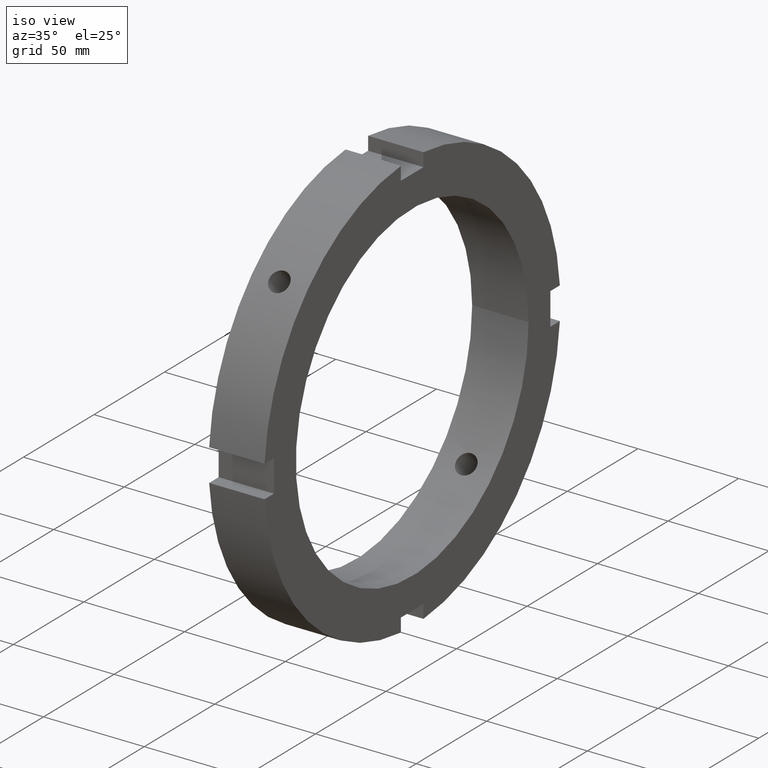
[diagram: clean part render]
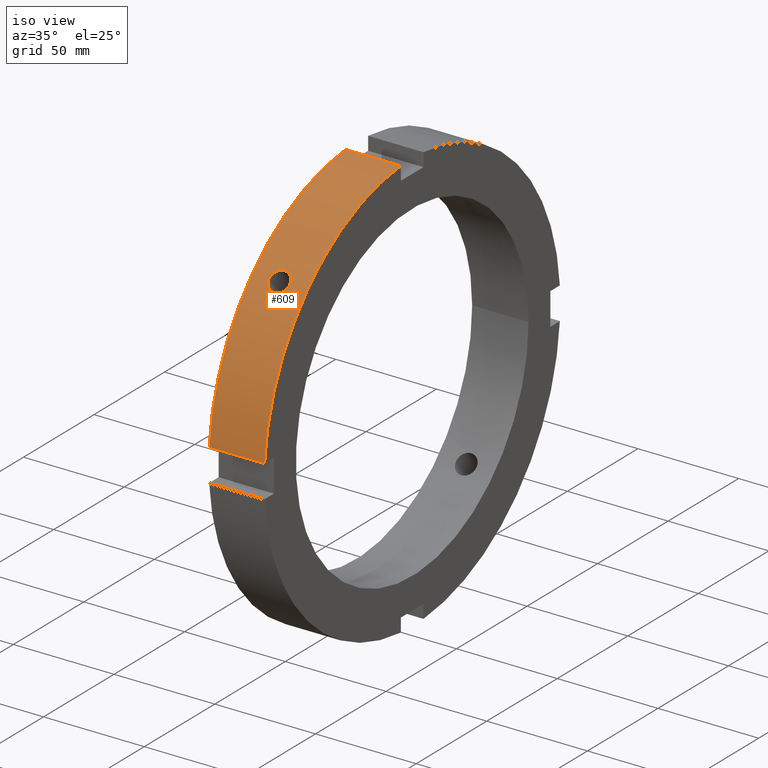
[diagram: same view with one face highlighted and labeled with its STEP entity id]
A machine part, iso view. The second image highlights one B-rep face of the part: STEP entity #609.
In plain terms, the highlighted cylindrical surface (partial cylindrical patch) has radius 105 mm, axis along (1, 0, 0).
Its self-contained STEP definition (entity closure, byte-faithful):
#73=CARTESIAN_POINT('',(13.999999999999984,-77.733199315769625,70.587178185098395));
#74=VERTEX_POINT('',#73);
#75=CARTESIAN_POINT('',(13.999999999999984,-77.733199315769625,70.587178185098395));
#76=CARTESIAN_POINT('',(13.365428863528496,-77.733199315769625,70.587178185098395));
#77=CARTESIAN_POINT('',(12.688627476049724,-77.648001809649941,70.681358470823881));
#78=CARTESIAN_POINT('',(11.443701695469766,-77.299570315646193,71.062247707642427));
#79=CARTESIAN_POINT('',(10.875568998464228,-77.036106571302355,71.348719268373202));
#80=CARTESIAN_POINT('',(9.978409952168303,-76.423319190801706,72.004706378749972));
#81=CARTESIAN_POINT('',(9.589546908334143,-76.033086775509958,72.417934981492252));
#82=CARTESIAN_POINT('',(9.073839220232214,-75.169006807433362,73.314446101556157));
#83=CARTESIAN_POINT('',(8.946999999999985,-74.694921497004358,73.797502552170627));
#84=CARTESIAN_POINT('',(8.946999999999983,-73.797502552170613,74.694921497004358));
#85=CARTESIAN_POINT('',(9.073839220232216,-73.314446101556143,75.169006807433391));
#86=CARTESIAN_POINT('',(9.589546908334139,-72.417934981492238,76.033086775509972));
#87=CARTESIAN_POINT('',(9.978409952168299,-72.004706378749958,76.423319190801720));
#88=CARTESIAN_POINT('',(10.875568998464225,-71.348719268373188,77.036106571302355));
#89=CARTESIAN_POINT('',(11.443701695469757,-71.062247707642427,77.299570315646207));
#90=CARTESIAN_POINT('',(12.688627476049717,-70.681358470823881,77.648001809649955));
#91=CARTESIAN_POINT('',(13.365428863528496,-70.587178185098395,77.733199315769639));
#92=CARTESIAN_POINT('',(14.634571136471472,-70.587178185098395,77.733199315769639));
#93=CARTESIAN_POINT('',(15.311372523950251,-70.681358470823866,77.648001809649955));
#94=CARTESIAN_POINT('',(16.556298304530209,-71.062247707642413,77.299570315646207));
#95=CARTESIAN_POINT('',(17.124431001535740,-71.348719268373188,77.036106571302369));
#96=CARTESIAN_POINT('',(18.021590047831666,-72.004706378749958,76.423319190801720));
#97=CARTESIAN_POINT('',(18.410453091665829,-72.417934981492238,76.033086775509972));
#98=CARTESIAN_POINT('',(18.926160779767752,-73.314446101556143,75.169006807433391));
#99=CARTESIAN_POINT('',(19.052999999999983,-73.797502552170613,74.694921497004358));
#100=CARTESIAN_POINT('',(19.052999999999983,-74.694921497004358,73.797502552170627));
#101=CARTESIAN_POINT('',(18.926160779767748,-75.169006807433362,73.314446101556157));
#102=CARTESIAN_POINT('',(18.410453091665822,-76.033086775509958,72.417934981492252));
#103=CARTESIAN_POINT('',(18.021590047831666,-76.423319190801706,72.004706378749972));
#104=CARTESIAN_POINT('',(17.124431001535740,-77.036106571302355,71.348719268373202));
#105=CARTESIAN_POINT('',(16.556298304530202,-77.299570315646207,71.062247707642442));
#106=CARTESIAN_POINT('',(15.311372523950242,-77.648001809649955,70.681358470823895));
#107=CARTESIAN_POINT('',(14.634571136471470,-77.733199315769625,70.587178185098395));
#108=CARTESIAN_POINT('',(13.999999999999984,-77.733199315769625,70.587178185098395));
#109=B_SPLINE_CURVE_WITH_KNOTS('',3,(#75,#76,#77,#78,#79,#80,#81,#82,#83,#84,#85,#86,#87,#88,#89,#90,#91,#92,#93,#94,#95,#96,#97,#98,#99,#100,#101,#102,#103,#104,#105,#106,#107,#108),.UNSPECIFIED.,.T.,.U.,(4,2,2,2,2,2,2,2,2,2,2,2,2,2,2,2,4),(0.0,0.190371340941446,0.380742681882892,0.571113988320056,0.761485294757220,0.951856601194385,1.142227907631549,1.332599248572995,1.522970589514441,1.713341930455888,1.903713271397334,2.094084577834498,2.284455884271663,2.474827190708827,2.665198497145991,2.855569838087437,3.045941179028883),.UNSPECIFIED.);
#110=EDGE_CURVE('',#74,#74,#109,.T.);
#353=CARTESIAN_POINT('',(0.499999999999972,-104.694794521981850,8.000000000000009));
#354=VERTEX_POINT('',#353);
#369=CARTESIAN_POINT('',(27.999999999999979,-104.694794521981850,8.000000000000009));
#370=VERTEX_POINT('',#369);
#377=CARTESIAN_POINT('',(0.499999999999972,-104.694794521981850,8.000000000000009));
#378=DIRECTION('',(1.0,0.0,0.0));
#379=VECTOR('',#378,27.500000000000007);
#380=LINE('',#377,#379);
#381=EDGE_CURVE('',#354,#370,#380,.T.);
#493=CARTESIAN_POINT('',(0.499999999999972,-7.999999999999989,104.694794521981850));
#494=VERTEX_POINT('',#493);
#503=CARTESIAN_POINT('',(27.999999999999979,-7.999999999999989,104.694794521981850));
#504=VERTEX_POINT('',#503);
#505=CARTESIAN_POINT('',(27.999999999999979,-7.999999999999989,104.694794521981850));
#506=DIRECTION('',(-1.0,0.0,0.0));
#507=VECTOR('',#506,27.500000000000007);
#508=LINE('',#505,#507);
#509=EDGE_CURVE('',#504,#494,#508,.T.);
#583=CARTESIAN_POINT('',(14.249999999999975,0.0,0.0));
#584=DIRECTION('',(1.0,0.0,0.0));
#585=DIRECTION('',(0.0,1.0,0.0));
#586=AXIS2_PLACEMENT_3D('',#583,#584,#585);
#587=CYLINDRICAL_SURFACE('',#586,105.0);
#588=ORIENTED_EDGE('',*,*,#381,.T.);
#589=CARTESIAN_POINT('',(27.999999999999979,0.0,0.0));
#590=DIRECTION('',(1.0,0.0,0.0));
#591=DIRECTION('',(0.0,1.0,0.0));
#592=AXIS2_PLACEMENT_3D('',#589,#590,#591);
#593=CIRCLE('',#592,105.0);
#594=EDGE_CURVE('',#504,#370,#593,.T.);
#595=ORIENTED_EDGE('',*,*,#594,.F.);
#596=ORIENTED_EDGE('',*,*,#509,.T.);
#597=CARTESIAN_POINT('',(0.499999999999972,0.0,0.0));
#598=DIRECTION('',(1.0,0.0,0.0));
#599=DIRECTION('',(0.0,1.0,0.0));
#600=AXIS2_PLACEMENT_3D('',#597,#598,#599);
#601=CIRCLE('',#600,105.0);
#602=EDGE_CURVE('',#494,#354,#601,.T.);
#603=ORIENTED_EDGE('',*,*,#602,.T.);
#604=EDGE_LOOP('',(#588,#595,#596,#603));
#605=FACE_OUTER_BOUND('',#604,.T.);
#606=ORIENTED_EDGE('',*,*,#110,.T.);
#607=EDGE_LOOP('',(#606));
#608=FACE_BOUND('',#607,.T.);
#609=ADVANCED_FACE('',(#605,#608),#587,.T.);